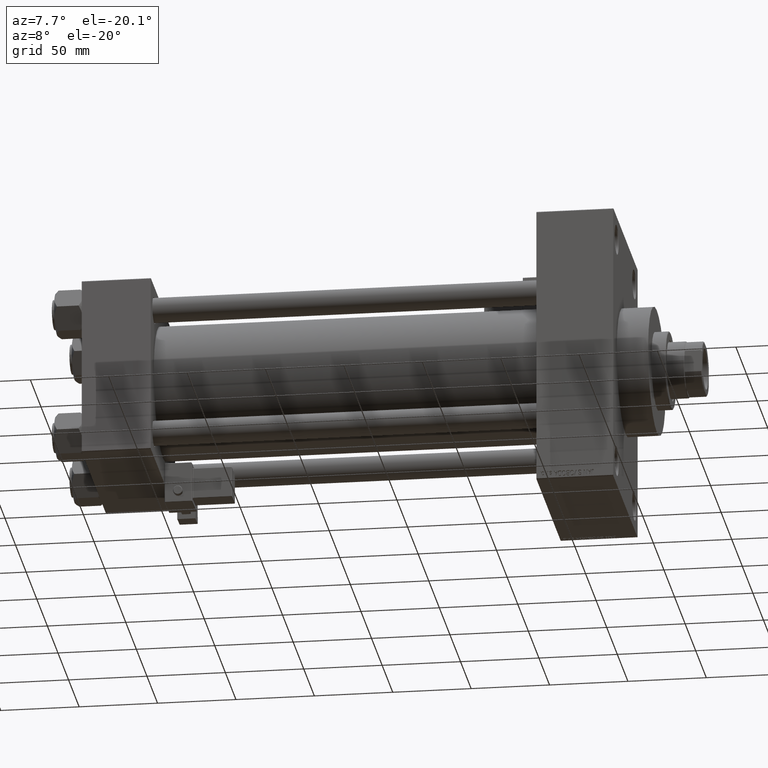
[diagram: clean part render]
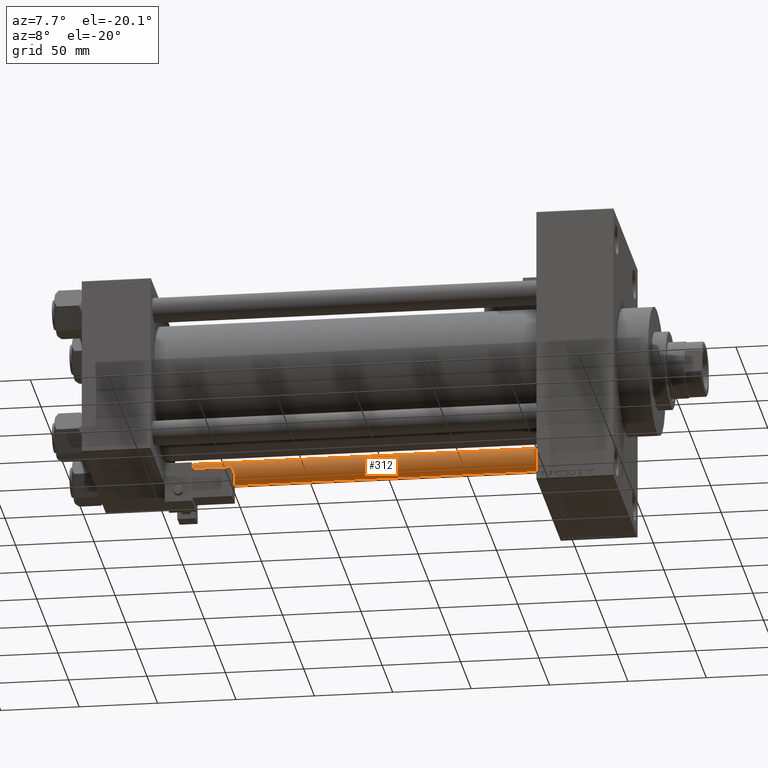
[diagram: same view with one face highlighted and labeled with its STEP entity id]
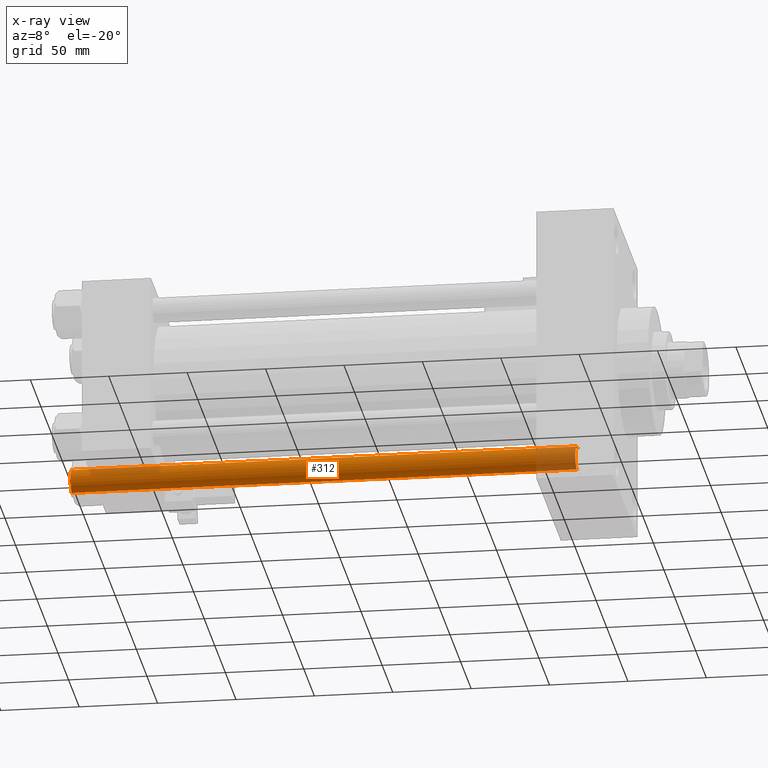
[diagram: x-ray of the same camera — body ghosted, the highlighted face saturated]
A machine part, auxiliary view. The second image highlights one B-rep face of the part: STEP entity #312.
The next image is the same camera in x-ray: the body ghosted, the highlighted face saturated — about 12% of this face is hidden behind the body in this view.
In plain terms, the highlighted cylindrical surface (edge-blend (fillet) strip) has radius 8 mm, axis along (1, -0, 0).
Its self-contained STEP definition (entity closure, byte-faithful):
#312 = ADVANCED_FACE ( 'NONE', ( #43427 ), #46943, .T. ) ;
#1277 = EDGE_CURVE ( 'NONE', #14183, #49511, #30923, .T. ) ;
#1417 = CARTESIAN_POINT ( 'NONE',  ( 0.000000000000000000, 0.000000000000000000, 322.5000000000000000 ) ) ;
#3039 = DIRECTION ( 'NONE',  ( -0.000000000000000000, -0.000000000000000000, -1.000000000000000000 ) ) ;
#3310 = EDGE_CURVE ( 'NONE', #21916, #14183, #22650, .T. ) ;
#7625 = CARTESIAN_POINT ( 'NONE',  ( 8.000000000000000000, 9.797174393178825657E-16, 0.5000000000000004441 ) ) ;
#8621 = CARTESIAN_POINT ( 'NONE',  ( 0.000000000000000000, 0.000000000000000000, 323.0000000000000000 ) ) ;
#12060 = ORIENTED_EDGE ( 'NONE', *, *, #48407, .T. ) ;
#12780 = DIRECTION ( 'NONE',  ( 0.000000000000000000, 0.000000000000000000, -1.000000000000000000 ) ) ;
#13575 = CIRCLE ( 'NONE', #47268, 8.000000000000000000 ) ;
#13599 = EDGE_CURVE ( 'NONE', #21916, #31711, #14640, .T. ) ;
#14183 = VERTEX_POINT ( 'NONE', #49720 ) ;
#14640 = LINE ( 'NONE', #33827, #42748 ) ;
#16144 = CARTESIAN_POINT ( 'NONE',  ( 0.000000000000000000, 0.000000000000000000, 0.5000000000000004441 ) ) ;
#17560 = CARTESIAN_POINT ( 'NONE',  ( 8.000000000000000000, 9.797174393178825657E-16, 322.5000000000000000 ) ) ;
#17940 = AXIS2_PLACEMENT_3D ( 'NONE', #1417, #12780, #24143 ) ;
#21916 = VERTEX_POINT ( 'NONE', #17560 ) ;
#22650 = CIRCLE ( 'NONE', #17940, 8.000000000000000000 ) ;
#24026 = DIRECTION ( 'NONE',  ( -1.000000000000000000, 0.000000000000000000, 0.000000000000000000 ) ) ;
#24143 = DIRECTION ( 'NONE',  ( 1.000000000000000000, 0.000000000000000000, 0.000000000000000000 ) ) ;
#25898 = AXIS2_PLACEMENT_3D ( 'NONE', #8621, #46697, #24026 ) ;
#26724 = VECTOR ( 'NONE', #38979, 1000.000000000000000 ) ;
#28118 = ORIENTED_EDGE ( 'NONE', *, *, #3310, .T. ) ;
#30923 = LINE ( 'NONE', #42503, #26724 ) ;
#31541 = DIRECTION ( 'NONE',  ( 1.000000000000000000, 0.000000000000000000, 0.000000000000000000 ) ) ;
#31711 = VERTEX_POINT ( 'NONE', #7625 ) ;
#32066 = ORIENTED_EDGE ( 'NONE', *, *, #13599, .F. ) ;
#33827 = CARTESIAN_POINT ( 'NONE',  ( 8.000000000000000000, 9.797174393178825657E-16, 323.0000000000000000 ) ) ;
#34532 = CARTESIAN_POINT ( 'NONE',  ( -8.000000000000000000, 0.000000000000000000, 0.5000000000000004441 ) ) ;
#34848 = ORIENTED_EDGE ( 'NONE', *, *, #1277, .T. ) ;
#38979 = DIRECTION ( 'NONE',  ( -0.000000000000000000, -0.000000000000000000, -1.000000000000000000 ) ) ;
#39079 = EDGE_LOOP ( 'NONE', ( #32066, #28118, #34848, #12060 ) ) ;
#42503 = CARTESIAN_POINT ( 'NONE',  ( -8.000000000000000000, 0.000000000000000000, 323.0000000000000000 ) ) ;
#42748 = VECTOR ( 'NONE', #3039, 1000.000000000000000 ) ;
#43427 = FACE_OUTER_BOUND ( 'NONE', #39079, .T. ) ;
#46648 = DIRECTION ( 'NONE',  ( -0.000000000000000000, -0.000000000000000000, 1.000000000000000000 ) ) ;
#46697 = DIRECTION ( 'NONE',  ( -0.000000000000000000, -0.000000000000000000, -1.000000000000000000 ) ) ;
#46943 = CYLINDRICAL_SURFACE ( 'NONE', #25898, 8.000000000000000000 ) ;
#47268 = AXIS2_PLACEMENT_3D ( 'NONE', #16144, #46648, #31541 ) ;
#48407 = EDGE_CURVE ( 'NONE', #49511, #31711, #13575, .T. ) ;
#49511 = VERTEX_POINT ( 'NONE', #34532 ) ;
#49720 = CARTESIAN_POINT ( 'NONE',  ( -8.000000000000000000, 0.000000000000000000, 322.5000000000000000 ) ) ;